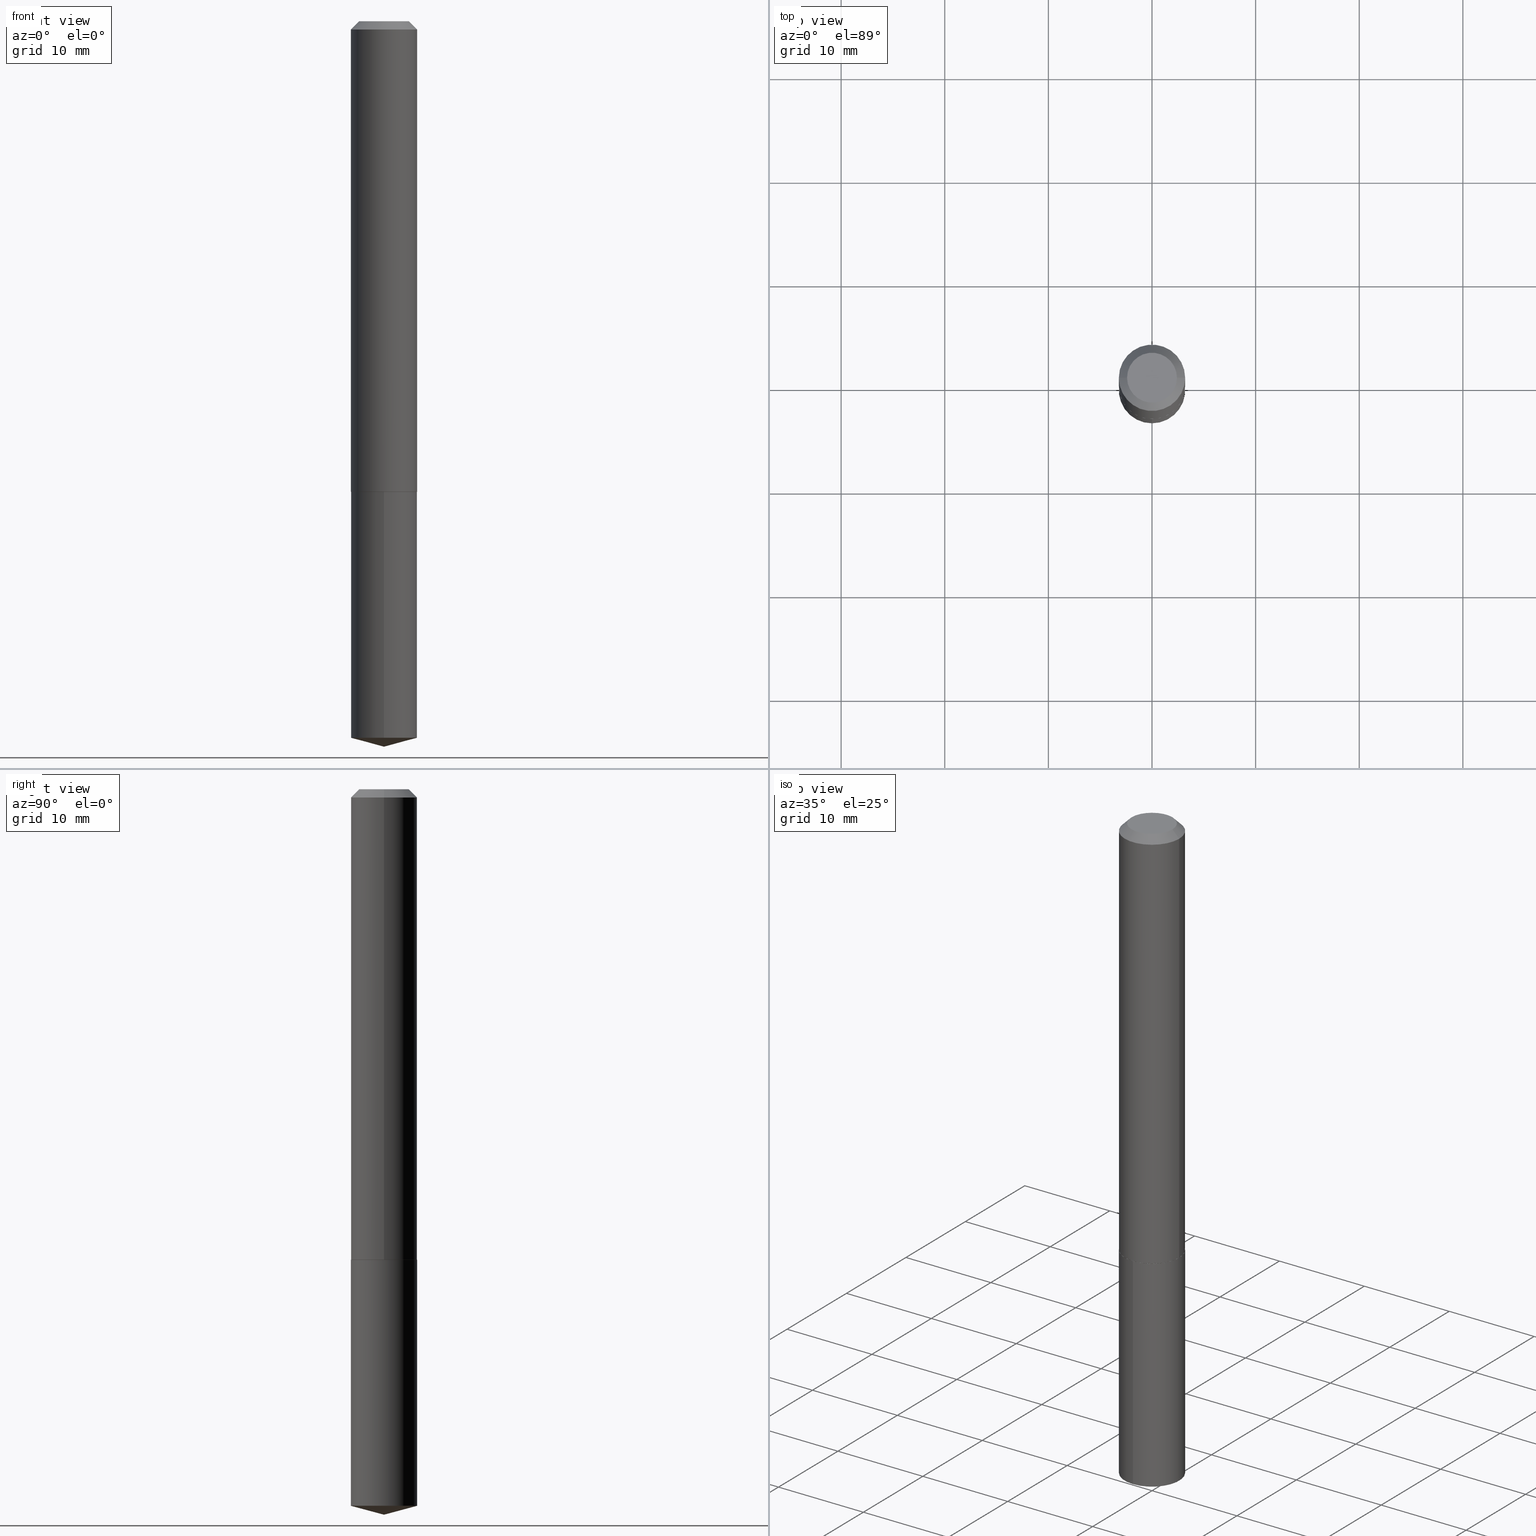
[diagram: canonical four-view strip — front | top / right | iso, engineering-drawing reading convention]
A machine part, canonical four-view strip (front | top / right | iso — engineering-drawing reading convention). The complete STEP part file that produces these views, byte-faithful:
ISO-10303-21;
HEADER;
FILE_DESCRIPTION (( 'STEP AP203' ),
    '1' );
FILE_NAME ('63066.STEP',
    '2024-04-23T09:14:48',
    ( '' ),
    ( '' ),
    'SwSTEP 2.0',
    'SolidWorks 2023',
    '' );
FILE_SCHEMA (( 'CONFIG_CONTROL_DESIGN' ));
ENDSEC;

DATA;
#1 = VECTOR ( 'NONE', #240, 39.37007874015748854 ) ;
#2 = CARTESIAN_POINT ( 'NONE',  ( -0.1260000000000001119, 8.952838470577270294E-16, -6.197858213721186913E-30 ) ) ;
#3 = FACE_OUTER_BOUND ( 'NONE', #21, .T. ) ;
#4 = DATE_AND_TIME ( #53, #298 ) ;
#5 = EDGE_CURVE ( 'NONE', #261, #83, #108, .T. ) ;
#6 = CARTESIAN_POINT ( 'NONE',  ( 8.952838470577930965E-16, 0.1259999999999937559, -1.787400000000000766 ) ) ;
#7 = DIRECTION ( 'NONE',  ( 1.000000000000000000, -6.982962677686266711E-15, 4.876176775795935793E-29 ) ) ;
#8 = AXIS2_PLACEMENT_3D ( 'NONE', #370, #280, #156 ) ;
#9 = CARTESIAN_POINT ( 'NONE',  ( 8.952838470577698251E-16, 0.1259999999999937559, -1.787400000000000766 ) ) ;
#10 = DIRECTION ( 'NONE',  ( 6.863315791527694259E-15, 0.9659258262890694224, 0.2588190451025160765 ) ) ;
#11 = ADVANCED_FACE ( 'NONE', ( #191 ), #286, .F. ) ;
#12 = DIRECTION ( 'NONE',  ( 1.000000000000000000, -6.982962677686268288E-15, 0.000000000000000000 ) ) ;
#13 = VECTOR ( 'NONE', #85, 39.37007874015748143 ) ;
#14 = CC_DESIGN_SECURITY_CLASSIFICATION ( #39, ( #245 ) ) ;
#15 = CARTESIAN_POINT ( 'NONE',  ( 6.739907095617639428E-29, -9.621543871378932650E-15, -2.755900000000000016 ) ) ;
#16 = DIRECTION ( 'NONE',  ( -2.445468806185136597E-29, 3.491481338843145583E-15, 1.000000000000000000 ) ) ;
#17 = CARTESIAN_POINT ( 'NONE',  ( 7.642090019328603538E-31, -1.091087918388490390E-16, -0.03125000000000021511 ) ) ;
#18 = AXIS2_PLACEMENT_3D ( 'NONE', #336, #152, #294 ) ;
#19 = VERTEX_POINT ( 'NONE', #195 ) ;
#20 = COORDINATED_UNIVERSAL_TIME_OFFSET ( 5, 0, .BEHIND. ) ;
#21 = EDGE_LOOP ( 'NONE', ( #163, #117, #57, #118 ) ) ;
#22 = EDGE_CURVE ( 'NONE', #378, #137, #318, .T. ) ;
#23 = COORDINATED_UNIVERSAL_TIME_OFFSET ( 5, 0, .BEHIND. ) ;
#24 = ORIENTED_EDGE ( 'NONE', *, *, #390, .T. ) ;
#25 = CC_DESIGN_APPROVAL ( #233, ( #245 ) ) ;
#26 = APPROVAL_STATUS ( 'not_yet_approved' ) ;
#27 = ORIENTED_EDGE ( 'NONE', *, *, #352, .F. ) ;
#28 = ORIENTED_EDGE ( 'NONE', *, *, #333, .F. ) ;
#29 = DATE_TIME_ROLE ( 'creation_date' ) ;
#30 = ORIENTED_EDGE ( 'NONE', *, *, #182, .T. ) ;
#31 = ORIENTED_EDGE ( 'NONE', *, *, #274, .T. ) ;
#32 = FACE_OUTER_BOUND ( 'NONE', #293, .T. ) ;
#33 = CIRCLE ( 'NONE', #176, 0.1260000000000000009 ) ;
#34 = DIRECTION ( 'NONE',  ( 1.000000000000000000, -6.982962677686265922E-15, 0.000000000000000000 ) ) ;
#35 = DIRECTION ( 'NONE',  ( 6.982962677686265922E-15, 1.000000000000000000, -3.491252901549015115E-15 ) ) ;
#36 = CARTESIAN_POINT ( 'NONE',  ( 6.657053654188704895E-29, -9.504081902360058107E-15, -2.722138401753678494 ) ) ;
#37 = DIRECTION ( 'NONE',  ( -2.445468806185136597E-29, 3.491481338843145583E-15, 1.000000000000000000 ) ) ;
#38 = AXIS2_PLACEMENT_3D ( 'NONE', #92, #264, #7 ) ;
#39 = SECURITY_CLASSIFICATION ( '', '', #321 ) ;
#40 = LINE ( 'NONE', #187, #363 ) ;
#41 = DESIGN_CONTEXT ( 'detailed design', #185, 'design' ) ;
#42 = DIRECTION ( 'NONE',  ( -2.445468806185136597E-29, 3.491481338843145583E-15, 1.000000000000000000 ) ) ;
#43 = CARTESIAN_POINT ( 'NONE',  ( 0.000000000000000000, 0.000000000000000000, 0.000000000000000000 ) ) ;
#44 = CC_DESIGN_PERSON_AND_ORGANIZATION_ASSIGNMENT ( #76, #51, ( #249 ) ) ;
#45 = DIRECTION ( 'NONE',  ( 1.000000000000000000, -6.982962677686266711E-15, 4.876176775795935793E-29 ) ) ;
#46 = FACE_OUTER_BOUND ( 'NONE', #106, .T. ) ;
#47 = PERSON_AND_ORGANIZATION ( #199, #369 ) ;
#48 = VERTEX_POINT ( 'NONE', #198 ) ;
#49 = CIRCLE ( 'NONE', #63, 0.1260000000000000009 ) ;
#50 = CONICAL_SURFACE ( 'NONE', #111, 0.1260000000000000009, 0.7853981633974450594 ) ;
#51 = PERSON_AND_ORGANIZATION_ROLE ( 'design_owner' ) ;
#52 = ORIENTED_EDGE ( 'NONE', *, *, #22, .T. ) ;
#53 = CALENDAR_DATE ( 2024, 23, 4 ) ;
#54 = EDGE_LOOP ( 'NONE', ( #316, #388, #173, #349 ) ) ;
#55 = CC_DESIGN_PERSON_AND_ORGANIZATION_ASSIGNMENT ( #347, #77, ( #127 ) ) ;
#56 =( LENGTH_UNIT ( ) NAMED_UNIT ( * ) SI_UNIT ( $, .METRE. ) );
#57 = ORIENTED_EDGE ( 'NONE', *, *, #242, .F. ) ;
#58 = ORIENTED_EDGE ( 'NONE', *, *, #341, .T. ) ;
#59 = DIRECTION ( 'NONE',  ( -6.982962677686265922E-15, -1.000000000000000000, 4.336266656609941617E-15 ) ) ;
#60 = LINE ( 'NONE', #175, #258 ) ;
#61 = ORIENTED_EDGE ( 'NONE', *, *, #5, .F. ) ;
#62 = EDGE_CURVE ( 'NONE', #226, #322, #272, .T. ) ;
#63 = AXIS2_PLACEMENT_3D ( 'NONE', #36, #65, #180 ) ;
#64 = FACE_OUTER_BOUND ( 'NONE', #148, .T. ) ;
#65 = DIRECTION ( 'NONE',  ( -2.445628323095046715E-29, 3.491252901549015509E-15, 1.000000000000000000 ) ) ;
#66 = DIRECTION ( 'NONE',  ( -2.445628323095046434E-29, 3.491252901549015115E-15, 1.000000000000000000 ) ) ;
#67 = PRODUCT_DEFINITION_SHAPE ( 'NONE', 'NONE',  #127 ) ;
#68 = DIRECTION ( 'NONE',  ( -2.445468806185136597E-29, 3.491481338843145583E-15, 1.000000000000000000 ) ) ;
#69 = CARTESIAN_POINT ( 'NONE',  ( -5.989671091818699506E-48, 8.551662891794013634E-34, 2.449293598294725547E-19 ) ) ;
#70 = UNCERTAINTY_MEASURE_WITH_UNIT (LENGTH_MEASURE( 1.000000000000000082E-05 ), #81, 'distance_accuracy_value', 'NONE');
#71 = FACE_OUTER_BOUND ( 'NONE', #354, .T. ) ;
#72 = ADVANCED_FACE ( 'NONE', ( #32 ), #219, .T. ) ;
#73 = DIRECTION ( 'NONE',  ( -2.445468806185136597E-29, 3.491481338843145583E-15, 1.000000000000000000 ) ) ;
#74 = VECTOR ( 'NONE', #247, 39.37007874015748143 ) ;
#75 = CYLINDRICAL_SURFACE ( 'NONE', #330, 0.1260000000000001119 ) ;
#76 = PERSON_AND_ORGANIZATION ( #199, #369 ) ;
#77 = PERSON_AND_ORGANIZATION_ROLE ( 'creator' ) ;
#78 = EDGE_CURVE ( 'NONE', #144, #48, #49, .T. ) ;
#79 = DIRECTION ( 'NONE',  ( -0.7071067811871027953, 7.493145998872359445E-15, 0.7071067811859920171 ) ) ;
#80 = VECTOR ( 'NONE', #360, 39.37007874015748143 ) ;
#81 =( CONVERSION_BASED_UNIT ( 'INCH', #346 ) LENGTH_UNIT ( ) NAMED_UNIT ( #208 ) );
#82 = DIRECTION ( 'NONE',  ( -1.000000000000000000, 6.982962677686265922E-15, -4.876176775795935793E-29 ) ) ;
#83 = VERTEX_POINT ( 'NONE', #204 ) ;
#84 = APPROVAL_STATUS ( 'not_yet_approved' ) ;
#85 = DIRECTION ( 'NONE',  ( 0.7071067811865452413, -7.319954787623248157E-15, -0.7071067811865497932 ) ) ;
#86 = PERSON_AND_ORGANIZATION_ROLE ( 'design_supplier' ) ;
#87 = ORIENTED_EDGE ( 'NONE', *, *, #295, .T. ) ;
#88 = ORIENTED_EDGE ( 'NONE', *, *, #178, .T. ) ;
#89 = AXIS2_PLACEMENT_3D ( 'NONE', #181, #16, #305 ) ;
#90 = EDGE_LOOP ( 'NONE', ( #169, #88, #115, #385 ) ) ;
#91 = CARTESIAN_POINT ( 'NONE',  ( 4.369808209772221314E-29, -6.238928004378817156E-15, -1.786900000000000377 ) ) ;
#92 = CARTESIAN_POINT ( 'NONE',  ( 0.000000000000000000, 0.000000000000000000, 0.000000000000000000 ) ) ;
#93 = ADVANCED_FACE ( 'NONE', ( #3 ), #251, .T. ) ;
#94 = ORIENTED_EDGE ( 'NONE', *, *, #178, .F. ) ;
#95 = AXIS2_PLACEMENT_3D ( 'NONE', #267, #361, #206 ) ;
#96 = CIRCLE ( 'NONE', #283, 0.1260000000000001952 ) ;
#97 = DIRECTION ( 'NONE',  ( 1.000000000000000000, -6.982962677686268288E-15, 0.000000000000000000 ) ) ;
#98 = CARTESIAN_POINT ( 'NONE',  ( -0.1260000000000000009, -2.278734551051105310E-15, -0.03125000000000021511 ) ) ;
#99 = APPLICATION_CONTEXT ( 'configuration controlled 3d designs of mechanical parts and assemblies' ) ;
#100 = DIRECTION ( 'NONE',  ( -6.982962677686265922E-15, -1.000000000000000000, 4.336266656609941617E-15 ) ) ;
#101 = CARTESIAN_POINT ( 'NONE',  ( 0.1260000000000001119, -8.798532973884703392E-16, 6.143982737502884452E-30 ) ) ;
#102 = AXIS2_PLACEMENT_3D ( 'NONE', #69, #42, #103 ) ;
#103 = DIRECTION ( 'NONE',  ( 1.000000000000000000, -6.982962677686266711E-15, 4.876169288824004424E-29 ) ) ;
#104 = CARTESIAN_POINT ( 'NONE',  ( 4.371030944175314115E-29, -6.240673745048238660E-15, -1.787400000000000100 ) ) ;
#105 = VECTOR ( 'NONE', #339, 39.37007874015748143 ) ;
#106 = EDGE_LOOP ( 'NONE', ( #166, #139, #30, #259 ) ) ;
#107 = APPROVAL_STATUS ( 'not_yet_approved' ) ;
#108 = LINE ( 'NONE', #230, #151 ) ;
#109 = APPROVAL_DATE_TIME ( #291, #122 ) ;
#110 = CARTESIAN_POINT ( 'NONE',  ( -2.994835545909349753E-48, 4.275831445897006817E-34, 1.224646799147362773E-19 ) ) ;
#111 = AXIS2_PLACEMENT_3D ( 'NONE', #311, #161, #252 ) ;
#112 = PERSON_AND_ORGANIZATION ( #199, #369 ) ;
#113 = VERTEX_POINT ( 'NONE', #98 ) ;
#114 = EDGE_CURVE ( 'NONE', #144, #116, #236, .T. ) ;
#115 = ORIENTED_EDGE ( 'NONE', *, *, #289, .F. ) ;
#116 = VERTEX_POINT ( 'NONE', #6 ) ;
#117 = ORIENTED_EDGE ( 'NONE', *, *, #5, .T. ) ;
#118 = ORIENTED_EDGE ( 'NONE', *, *, #62, .F. ) ;
#119 = CIRCLE ( 'NONE', #357, 0.1255000000000000560 ) ;
#120 = CC_DESIGN_APPROVAL ( #326, ( #39 ) ) ;
#121 = DIRECTION ( 'NONE',  ( -2.445468806185136877E-29, 3.491481338843145188E-15, 1.000000000000000000 ) ) ;
#122 = APPROVAL ( #107, 'UNSPECIFIED' ) ;
#123 = LINE ( 'NONE', #2, #192 ) ;
#124 = CARTESIAN_POINT ( 'NONE',  ( 4.369808209772221314E-29, -6.238928004378817156E-15, -1.786900000000000377 ) ) ;
#125 = AXIS2_PLACEMENT_3D ( 'NONE', #17, #133, #128 ) ;
#126 = CYLINDRICAL_SURFACE ( 'NONE', #95, 0.1260000000000000009 ) ;
#127 = PRODUCT_DEFINITION ( 'UNKNOWN', '', #245, #41 ) ;
#128 = DIRECTION ( 'NONE',  ( -1.000000000000000000, 6.982962677686265922E-15, 0.000000000000000000 ) ) ;
#129 = EDGE_CURVE ( 'NONE', #19, #378, #131, .T. ) ;
#130 = CARTESIAN_POINT ( 'NONE',  ( 6.739912095958528590E-29, -9.621543871378932650E-15, -2.755900000000000016 ) ) ;
#131 = CIRCLE ( 'NONE', #265, 0.09474999999999998701 ) ;
#132 = CC_DESIGN_DATE_AND_TIME_ASSIGNMENT ( #138, #384, ( #39 ) ) ;
#133 = DIRECTION ( 'NONE',  ( 2.445468806185136597E-29, -3.491481338843145583E-15, -1.000000000000000000 ) ) ;
#134 = FACE_OUTER_BOUND ( 'NONE', #54, .T. ) ;
#135 = AXIS2_PLACEMENT_3D ( 'NONE', #332, #216, #100 ) ;
#136 = EDGE_CURVE ( 'NONE', #172, #116, #368, .T. ) ;
#137 = VERTEX_POINT ( 'NONE', #212 ) ;
#138 = DATE_AND_TIME ( #255, #160 ) ;
#139 = ORIENTED_EDGE ( 'NONE', *, *, #78, .T. ) ;
#140 = ADVANCED_FACE ( 'NONE', ( #174 ), #143, .T. ) ;
#141 = APPROVAL_ROLE ( '' ) ;
#142 = ORIENTED_EDGE ( 'NONE', *, *, #62, .T. ) ;
#143 = CONICAL_SURFACE ( 'NONE', #18, 146.9311341562558084, 1.308996938995748538 ) ;
#144 = VERTEX_POINT ( 'NONE', #301 ) ;
#145 = APPROVAL_PERSON_ORGANIZATION ( #168, #122, #225 ) ;
#146 = DIRECTION ( 'NONE',  ( 1.000000000000000000, 0.000000000000000000, 0.000000000000000000 ) ) ;
#147 = ORIENTED_EDGE ( 'NONE', *, *, #262, .T. ) ;
#148 = EDGE_LOOP ( 'NONE', ( #382, #24 ) ) ;
#149 = FACE_OUTER_BOUND ( 'NONE', #284, .T. ) ;
#150 = ADVANCED_FACE ( 'NONE', ( #149 ), #238, .T. ) ;
#151 = VECTOR ( 'NONE', #79, 39.37007874015748854 ) ;
#152 = DIRECTION ( 'NONE',  ( -2.445628323095046715E-29, 3.491252901549015509E-15, 1.000000000000000000 ) ) ;
#153 = DIRECTION ( 'NONE',  ( 1.000000000000000000, -6.982962677686268288E-15, 0.000000000000000000 ) ) ;
#154 = FACE_OUTER_BOUND ( 'NONE', #213, .T. ) ;
#155 = DIRECTION ( 'NONE',  ( 2.445628323095046715E-29, -3.491252901549015115E-15, -1.000000000000000000 ) ) ;
#156 = DIRECTION ( 'NONE',  ( -6.982962677686266711E-15, -1.000000000000000000, 3.510303681827621500E-15 ) ) ;
#157 = CARTESIAN_POINT ( 'NONE',  ( 0.09474999999999998701, -8.117818624234574270E-16, 2.449293598346239839E-19 ) ) ;
#158 = CIRCLE ( 'NONE', #135, 0.1260000000000000009 ) ;
#159 = DIRECTION ( 'NONE',  ( -6.982962677686265922E-15, -1.000000000000000000, 4.336266656609941617E-15 ) ) ;
#160 = LOCAL_TIME ( 5, 14, 48.00000000000000000, #20 ) ;
#161 = DIRECTION ( 'NONE',  ( 2.445468806185136597E-29, -3.491481338843145583E-15, -1.000000000000000000 ) ) ;
#162 = CARTESIAN_POINT ( 'NONE',  ( 7.087934856449924707E-29, -2.349912706103619033E-15, -1.787399999999999878 ) ) ;
#163 = ORIENTED_EDGE ( 'NONE', *, *, #333, .T. ) ;
#164 = CIRCLE ( 'NONE', #276, 0.1260000000000001952 ) ;
#165 = DATE_AND_TIME ( #201, #304 ) ;
#166 = ORIENTED_EDGE ( 'NONE', *, *, #114, .F. ) ;
#167 = CARTESIAN_POINT ( 'NONE',  ( 0.1260000000000000009, -9.735315395580621580E-16, -0.03125000000000021511 ) ) ;
#168 = PERSON_AND_ORGANIZATION ( #199, #369 ) ;
#169 = ORIENTED_EDGE ( 'NONE', *, *, #242, .T. ) ;
#170 = CONICAL_SURFACE ( 'NONE', #8, 146.9311341562558084, 1.308996938995748538 ) ;
#171 = APPLICATION_PROTOCOL_DEFINITION ( 'international standard', 'config_control_design', 1994, #185 ) ;
#172 = VERTEX_POINT ( 'NONE', #303 ) ;
#173 = ORIENTED_EDGE ( 'NONE', *, *, #324, .T. ) ;
#174 = FACE_OUTER_BOUND ( 'NONE', #256, .T. ) ;
#175 = CARTESIAN_POINT ( 'NONE',  ( -8.798532973884258671E-16, -0.1260000000000062459, -1.787399999999999656 ) ) ;
#176 = AXIS2_PLACEMENT_3D ( 'NONE', #296, #37, #34 ) ;
#177 = DIRECTION ( 'NONE',  ( -2.445468806185136597E-29, 3.491481338843145583E-15, 1.000000000000000000 ) ) ;
#178 = EDGE_CURVE ( 'NONE', #83, #113, #123, .T. ) ;
#179 = CARTESIAN_POINT ( 'NONE',  ( 4.371030944175314115E-29, -6.240673745048238660E-15, -1.787400000000000100 ) ) ;
#180 = DIRECTION ( 'NONE',  ( -6.982962677686265922E-15, -1.000000000000000000, 4.336266656609941617E-15 ) ) ;
#181 = CARTESIAN_POINT ( 'NONE',  ( 7.642090019328603538E-31, -1.091087918388490390E-16, -0.03125000000000021511 ) ) ;
#182 = EDGE_CURVE ( 'NONE', #48, #172, #60, .T. ) ;
#183 = DIRECTION ( 'NONE',  ( 1.000000000000000000, -6.982962677686272233E-15, 0.000000000000000000 ) ) ;
#184 = DIRECTION ( 'NONE',  ( 1.000000000000000000, -6.982962677686272233E-15, 0.000000000000000000 ) ) ;
#185 = APPLICATION_CONTEXT ( 'configuration controlled 3d designs of mechanical parts and assemblies' ) ;
#186 = AXIS2_PLACEMENT_3D ( 'NONE', #104, #218, #214 ) ;
#187 = CARTESIAN_POINT ( 'NONE',  ( 6.739336854568093115E-29, -9.622360489017988415E-15, -2.755900000000000016 ) ) ;
#188 = CC_DESIGN_APPROVAL ( #122, ( #127 ) ) ;
#189 = FACE_OUTER_BOUND ( 'NONE', #292, .T. ) ;
#190 =( NAMED_UNIT ( * ) PLANE_ANGLE_UNIT ( ) SI_UNIT ( $, .RADIAN. ) );
#191 = FACE_OUTER_BOUND ( 'NONE', #389, .T. ) ;
#192 = VECTOR ( 'NONE', #121, 39.37007874015748143 ) ;
#193 = EDGE_CURVE ( 'NONE', #113, #137, #33, .T. ) ;
#194 = DIRECTION ( 'NONE',  ( 0.000000000000000000, 0.000000000000000000, 1.000000000000000000 ) ) ;
#195 = CARTESIAN_POINT ( 'NONE',  ( -0.09474999999999998701, 7.161901096301971812E-16, 2.449293598246548890E-19 ) ) ;
#196 = ORIENTED_EDGE ( 'NONE', *, *, #78, .F. ) ;
#197 = APPROVAL_ROLE ( '' ) ;
#198 = CARTESIAN_POINT ( 'NONE',  ( -8.798532973884031874E-16, -0.1260000000000095766, -2.722138401753678050 ) ) ;
#199 = PERSON ( 'UNSPECIFIED', 'UNSPECIFIED', 'UNSPECIFIED', ('UNSPECIFIED'), ('UNSPECIFIED'), ('UNSPECIFIED') ) ;
#200 = MANIFOLD_SOLID_BREP ( 'Body-Move/Copy2[2]', #297 ) ;
#201 = CALENDAR_DATE ( 2024, 23, 4 ) ;
#202 = ORIENTED_EDGE ( 'NONE', *, *, #262, .F. ) ;
#203 = AXIS2_PLACEMENT_3D ( 'NONE', #377, #194, #146 ) ;
#204 = CARTESIAN_POINT ( 'NONE',  ( -0.1260000000000001952, -5.343644157321089338E-15, -1.786900000000000377 ) ) ;
#205 = CARTESIAN_POINT ( 'NONE',  ( -5.989671091818699506E-48, 8.551662891794013634E-34, 2.449293598294725547E-19 ) ) ;
#206 = DIRECTION ( 'NONE',  ( -6.982962677686265922E-15, -1.000000000000000000, 4.336266656609941617E-15 ) ) ;
#207 = ADVANCED_FACE ( 'NONE', ( #154 ), #126, .T. ) ;
#208 = DIMENSIONAL_EXPONENTS ( 1.000000000000000000, 0.000000000000000000, 0.000000000000000000, 0.000000000000000000, 0.000000000000000000, 0.000000000000000000, 0.000000000000000000 ) ;
#209 = VECTOR ( 'NONE', #10, 39.37007874015748143 ) ;
#210 = CARTESIAN_POINT ( 'NONE',  ( -0.1255000000000000560, -5.346293384495200539E-15, -1.787399999999999656 ) ) ;
#211 = APPROVAL_DATE_TIME ( #4, #326 ) ;
#212 = CARTESIAN_POINT ( 'NONE',  ( 0.1260000000000000009, -9.889620892273186510E-16, -0.03125000000000021511 ) ) ;
#213 = EDGE_LOOP ( 'NONE', ( #147, #254, #290, #358 ) ) ;
#214 = DIRECTION ( 'NONE',  ( -6.982962677686265922E-15, -1.000000000000000000, 4.336266656609941617E-15 ) ) ;
#215 = DIRECTION ( 'NONE',  ( -2.438088387897960049E-29, 3.491481338843145188E-15, 1.000000000000000000 ) ) ;
#216 = DIRECTION ( 'NONE',  ( -2.445628323095046715E-29, 3.491252901549015509E-15, 1.000000000000000000 ) ) ;
#217 = CC_DESIGN_PERSON_AND_ORGANIZATION_ASSIGNMENT ( #353, #285, ( #39 ) ) ;
#218 = DIRECTION ( 'NONE',  ( -2.445628323095046715E-29, 3.491252901549015509E-15, 1.000000000000000000 ) ) ;
#219 = CONICAL_SURFACE ( 'NONE', #338, 0.1260000000000001952, 0.7853981633982337618 ) ;
#220 = PLANE ( 'NONE',  #239 ) ;
#221 = PRODUCT_RELATED_PRODUCT_CATEGORY ( 'detail', '', ( #249 ) ) ;
#222 =( GEOMETRIC_REPRESENTATION_CONTEXT ( 3 ) GLOBAL_UNCERTAINTY_ASSIGNED_CONTEXT ( ( #70 ) ) GLOBAL_UNIT_ASSIGNED_CONTEXT ( ( #81, #190, #313 ) ) REPRESENTATION_CONTEXT ( 'NONE', 'WORKASPACE' ) );
#223 = APPROVAL_DATE_TIME ( #165, #233 ) ;
#224 = ADVANCED_FACE ( 'NONE', ( #64 ), #299, .F. ) ;
#225 = APPROVAL_ROLE ( '' ) ;
#226 = VERTEX_POINT ( 'NONE', #269 ) ;
#227 = AXIS2_PLACEMENT_3D ( 'NONE', #179, #155, #35 ) ;
#228 = DIRECTION ( 'NONE',  ( 2.438088387897960049E-29, -3.491481338843145188E-15, -1.000000000000000000 ) ) ;
#229 = CALENDAR_DATE ( 2024, 23, 4 ) ;
#230 = CARTESIAN_POINT ( 'NONE',  ( -0.1260000000000001952, -5.343644157321089338E-15, -1.786900000000000377 ) ) ;
#231 = MECHANICAL_CONTEXT ( 'NONE', #99, 'mechanical' ) ;
#232 = ORIENTED_EDGE ( 'NONE', *, *, #295, .F. ) ;
#233 = APPROVAL ( #26, 'UNSPECIFIED' ) ;
#234 = ORIENTED_EDGE ( 'NONE', *, *, #289, .T. ) ;
#235 = ORIENTED_EDGE ( 'NONE', *, *, #324, .F. ) ;
#236 = LINE ( 'NONE', #9, #80 ) ;
#237 = DIRECTION ( 'NONE',  ( 1.000000000000000000, -6.982962677686266711E-15, 4.876169288824004424E-29 ) ) ;
#238 = CYLINDRICAL_SURFACE ( 'NONE', #38, 0.1260000000000001119 ) ;
#239 = AXIS2_PLACEMENT_3D ( 'NONE', #162, #215, #345 ) ;
#240 = DIRECTION ( 'NONE',  ( 0.7071067811871027953, -2.468850131088074121E-15, 0.7071067811859920171 ) ) ;
#241 = CARTESIAN_POINT ( 'NONE',  ( 4.369808209772221314E-29, -6.238928004378817156E-15, -1.786900000000000377 ) ) ;
#242 = EDGE_CURVE ( 'NONE', #322, #83, #164, .T. ) ;
#243 = FACE_OUTER_BOUND ( 'NONE', #90, .T. ) ;
#244 = CLOSED_SHELL ( 'NONE', ( #207, #328, #140, #302, #224 ) ) ;
#245 = PRODUCT_DEFINITION_FORMATION_WITH_SPECIFIED_SOURCE ( 'ANY', '', #249, .NOT_KNOWN. ) ;
#246 = CYLINDRICAL_SURFACE ( 'NONE', #186, 0.1260000000000000009 ) ;
#247 = DIRECTION ( 'NONE',  ( -0.7071067811865452413, 2.468850131082233000E-15, -0.7071067811865497932 ) ) ;
#248 = CARTESIAN_POINT ( 'NONE',  ( 4.371030944175312434E-29, -6.240673745048237082E-15, -1.787399999999999656 ) ) ;
#249 = PRODUCT ( '63066', '63066', '', ( #231 ) ) ;
#250 = ORIENTED_EDGE ( 'NONE', *, *, #307, .F. ) ;
#251 = CONICAL_SURFACE ( 'NONE', #374, 0.1260000000000001952, 0.7853981633982337618 ) ;
#252 = DIRECTION ( 'NONE',  ( -1.000000000000000000, 6.982962677686265922E-15, 0.000000000000000000 ) ) ;
#253 = APPROVAL_PERSON_ORGANIZATION ( #112, #326, #197 ) ;
#254 = ORIENTED_EDGE ( 'NONE', *, *, #114, .T. ) ;
#255 = CALENDAR_DATE ( 2024, 23, 4 ) ;
#256 = EDGE_LOOP ( 'NONE', ( #356, #320, #196 ) ) ;
#257 = PERSON_AND_ORGANIZATION_ROLE ( 'creator' ) ;
#258 = VECTOR ( 'NONE', #66, 39.37007874015748143 ) ;
#259 = ORIENTED_EDGE ( 'NONE', *, *, #390, .F. ) ;
#260 = DATE_AND_TIME ( #229, #310 ) ;
#261 = VERTEX_POINT ( 'NONE', #210 ) ;
#262 = EDGE_CURVE ( 'NONE', #48, #144, #158, .T. ) ;
#263 = ORIENTED_EDGE ( 'NONE', *, *, #129, .T. ) ;
#264 = DIRECTION ( 'NONE',  ( -2.445468806185136597E-29, 3.491481338843145583E-15, 1.000000000000000000 ) ) ;
#265 = AXIS2_PLACEMENT_3D ( 'NONE', #205, #366, #237 ) ;
#266 = LOCAL_TIME ( 5, 14, 48.00000000000000000, #282 ) ;
#267 = CARTESIAN_POINT ( 'NONE',  ( 4.371030944175314115E-29, -6.240673745048238660E-15, -1.787400000000000100 ) ) ;
#268 = ADVANCED_FACE ( 'NONE', ( #243 ), #75, .T. ) ;
#269 = CARTESIAN_POINT ( 'NONE',  ( 0.1255000000000000560, -7.117035561097863428E-15, -1.787399999999999656 ) ) ;
#270 = DIRECTION ( 'NONE',  ( -2.445468806185136597E-29, 3.491481338843145583E-15, 1.000000000000000000 ) ) ;
#271 = AXIS2_PLACEMENT_3D ( 'NONE', #337, #273, #184 ) ;
#272 = LINE ( 'NONE', #329, #1 ) ;
#273 = DIRECTION ( 'NONE',  ( -2.445468806185136597E-29, 3.491481338843145583E-15, 1.000000000000000000 ) ) ;
#274 = EDGE_CURVE ( 'NONE', #359, #144, #306, .T. ) ;
#275 = CARTESIAN_POINT ( 'NONE',  ( 4.369808209772221314E-29, -6.238928004378817156E-15, -1.786900000000000377 ) ) ;
#276 = AXIS2_PLACEMENT_3D ( 'NONE', #124, #362, #97 ) ;
#277 = ADVANCED_FACE ( 'NONE', ( #312 ), #309, .T. ) ;
#278 = CARTESIAN_POINT ( 'NONE',  ( 0.1260000000000001952, -7.118781301767288876E-15, -1.786900000000000377 ) ) ;
#279 = CARTESIAN_POINT ( 'NONE',  ( 4.371030944175314115E-29, -6.240673745048238660E-15, -1.787400000000000100 ) ) ;
#280 = DIRECTION ( 'NONE',  ( -2.445628323095046715E-29, 3.491252901549015509E-15, 1.000000000000000000 ) ) ;
#281 = CIRCLE ( 'NONE', #89, 0.1260000000000000009 ) ;
#282 = COORDINATED_UNIVERSAL_TIME_OFFSET ( 5, 0, .BEHIND. ) ;
#283 = AXIS2_PLACEMENT_3D ( 'NONE', #275, #371, #12 ) ;
#284 = EDGE_LOOP ( 'NONE', ( #94, #381, #58, #351 ) ) ;
#285 = PERSON_AND_ORGANIZATION_ROLE ( 'classification_officer' ) ;
#286 = PLANE ( 'NONE',  #350 ) ;
#287 = CC_DESIGN_PERSON_AND_ORGANIZATION_ASSIGNMENT ( #47, #257, ( #245 ) ) ;
#288 = ORIENTED_EDGE ( 'NONE', *, *, #379, .F. ) ;
#289 = EDGE_CURVE ( 'NONE', #137, #113, #281, .T. ) ;
#290 = ORIENTED_EDGE ( 'NONE', *, *, #136, .F. ) ;
#291 = DATE_AND_TIME ( #314, #266 ) ;
#292 = EDGE_LOOP ( 'NONE', ( #250, #31, #202 ) ) ;
#293 = EDGE_LOOP ( 'NONE', ( #61, #87, #142, #288 ) ) ;
#294 = DIRECTION ( 'NONE',  ( -6.982962677686266711E-15, -1.000000000000000000, 3.510303681827621500E-15 ) ) ;
#295 = EDGE_CURVE ( 'NONE', #261, #226, #119, .T. ) ;
#296 = CARTESIAN_POINT ( 'NONE',  ( 7.642090019328603538E-31, -1.091087918388490390E-16, -0.03125000000000021511 ) ) ;
#297 = CLOSED_SHELL ( 'NONE', ( #277, #268, #93, #319, #72, #150, #348, #11 ) ) ;
#298 = LOCAL_TIME ( 5, 14, 48.00000000000000000, #380 ) ;
#299 = PLANE ( 'NONE',  #227 ) ;
#300 = CC_DESIGN_PERSON_AND_ORGANIZATION_ASSIGNMENT ( #387, #86, ( #245 ) ) ;
#301 = CARTESIAN_POINT ( 'NONE',  ( 8.952838470577932937E-16, 0.1259999999999905362, -2.722138401753679382 ) ) ;
#302 = ADVANCED_FACE ( 'NONE', ( #46 ), #246, .T. ) ;
#303 = CARTESIAN_POINT ( 'NONE',  ( -8.798532973884258671E-16, -0.1260000000000062459, -1.787399999999999656 ) ) ;
#304 = LOCAL_TIME ( 5, 14, 48.00000000000000000, #376 ) ;
#305 = DIRECTION ( 'NONE',  ( 1.000000000000000000, -6.982962677686265922E-15, 0.000000000000000000 ) ) ;
#306 = LINE ( 'NONE', #130, #209 ) ;
#307 = EDGE_CURVE ( 'NONE', #359, #48, #40, .T. ) ;
#308 = LINE ( 'NONE', #101, #105 ) ;
#309 = CONICAL_SURFACE ( 'NONE', #125, 0.1260000000000000009, 0.7853981633974450594 ) ;
#310 = LOCAL_TIME ( 5, 14, 48.00000000000000000, #23 ) ;
#311 = CARTESIAN_POINT ( 'NONE',  ( 7.642090019328603538E-31, -1.091087918388490390E-16, -0.03125000000000021511 ) ) ;
#312 = FACE_OUTER_BOUND ( 'NONE', #386, .T. ) ;
#313 =( NAMED_UNIT ( * ) SI_UNIT ( $, .STERADIAN. ) SOLID_ANGLE_UNIT ( ) );
#314 = CALENDAR_DATE ( 2024, 23, 4 ) ;
#315 = CIRCLE ( 'NONE', #375, 0.1260000000000000009 ) ;
#316 = ORIENTED_EDGE ( 'NONE', *, *, #22, .F. ) ;
#317 = APPLICATION_PROTOCOL_DEFINITION ( 'international standard', 'config_control_design', 1994, #99 ) ;
#318 = LINE ( 'NONE', #167, #13 ) ;
#319 = ADVANCED_FACE ( 'NONE', ( #71 ), #220, .F. ) ;
#320 = ORIENTED_EDGE ( 'NONE', *, *, #307, .T. ) ;
#321 = SECURITY_CLASSIFICATION_LEVEL ( 'unclassified' ) ;
#322 = VERTEX_POINT ( 'NONE', #278 ) ;
#323 = ORIENTED_EDGE ( 'NONE', *, *, #352, .T. ) ;
#324 = EDGE_CURVE ( 'NONE', #19, #113, #367, .T. ) ;
#325 = DIRECTION ( 'NONE',  ( -2.445628323095046715E-29, 3.491252901549015509E-15, 1.000000000000000000 ) ) ;
#326 = APPROVAL ( #84, 'UNSPECIFIED' ) ;
#327 = CARTESIAN_POINT ( 'NONE',  ( 4.371030944175314115E-29, -6.240673745048238660E-15, -1.787400000000000100 ) ) ;
#328 = ADVANCED_FACE ( 'NONE', ( #189 ), #170, .T. ) ;
#329 = CARTESIAN_POINT ( 'NONE',  ( 0.1260000000000001952, -7.118781301767288876E-15, -1.786900000000000377 ) ) ;
#330 = AXIS2_PLACEMENT_3D ( 'NONE', #43, #68, #45 ) ;
#331 = CIRCLE ( 'NONE', #102, 0.09474999999999998701 ) ;
#332 = CARTESIAN_POINT ( 'NONE',  ( 6.657053654188704895E-29, -9.504081902360058107E-15, -2.722138401753678494 ) ) ;
#333 = EDGE_CURVE ( 'NONE', #226, #261, #343, .T. ) ;
#334 = SHAPE_DEFINITION_REPRESENTATION ( #67, #344 ) ;
#335 = MANIFOLD_SOLID_BREP ( 'Body-Move/Copy2[1]', #244 ) ;
#336 = CARTESIAN_POINT ( 'NONE',  ( -8.954495767431843886E-28, 1.278289494555895413E-13, 36.61417874015747742 ) ) ;
#337 = CARTESIAN_POINT ( 'NONE',  ( 4.371030944175312434E-29, -6.240673745048237082E-15, -1.787399999999999656 ) ) ;
#338 = AXIS2_PLACEMENT_3D ( 'NONE', #241, #270, #153 ) ;
#339 = DIRECTION ( 'NONE',  ( -2.445468806185136877E-29, 3.491481338843145188E-15, 1.000000000000000000 ) ) ;
#340 = DIRECTION ( 'NONE',  ( -2.445628323095046715E-29, 3.491252901549015509E-15, 1.000000000000000000 ) ) ;
#341 = EDGE_CURVE ( 'NONE', #322, #137, #308, .T. ) ;
#342 = CARTESIAN_POINT ( 'NONE',  ( -0.1260000000000000009, 7.707445055496204497E-16, -0.03125000000000021511 ) ) ;
#343 = CIRCLE ( 'NONE', #271, 0.1255000000000000560 ) ;
#344 = ADVANCED_BREP_SHAPE_REPRESENTATION ( '63066', ( #335, #200, #203 ), #222 ) ;
#345 = DIRECTION ( 'NONE',  ( 1.000000000000000000, -6.982962677686265922E-15, 4.876176775795935793E-29 ) ) ;
#346 = LENGTH_MEASURE_WITH_UNIT ( LENGTH_MEASURE( 0.02539999999999999897 ), #56 );
#347 = PERSON_AND_ORGANIZATION ( #199, #369 ) ;
#348 = ADVANCED_FACE ( 'NONE', ( #134 ), #50, .T. ) ;
#349 = ORIENTED_EDGE ( 'NONE', *, *, #193, .T. ) ;
#350 = AXIS2_PLACEMENT_3D ( 'NONE', #110, #228, #82 ) ;
#351 = ORIENTED_EDGE ( 'NONE', *, *, #193, .F. ) ;
#352 = EDGE_CURVE ( 'NONE', #378, #19, #331, .T. ) ;
#353 = PERSON_AND_ORGANIZATION ( #199, #369 ) ;
#354 = EDGE_LOOP ( 'NONE', ( #28, #232 ) ) ;
#355 = PERSON_AND_ORGANIZATION ( #199, #369 ) ;
#356 = ORIENTED_EDGE ( 'NONE', *, *, #274, .F. ) ;
#357 = AXIS2_PLACEMENT_3D ( 'NONE', #248, #73, #183 ) ;
#358 = ORIENTED_EDGE ( 'NONE', *, *, #182, .F. ) ;
#359 = VERTEX_POINT ( 'NONE', #15 ) ;
#360 = DIRECTION ( 'NONE',  ( -2.445628323095046434E-29, 3.491252901549015115E-15, 1.000000000000000000 ) ) ;
#361 = DIRECTION ( 'NONE',  ( -2.445628323095046715E-29, 3.491252901549015509E-15, 1.000000000000000000 ) ) ;
#362 = DIRECTION ( 'NONE',  ( -2.445468806185136597E-29, 3.491481338843145583E-15, 1.000000000000000000 ) ) ;
#363 = VECTOR ( 'NONE', #372, 39.37007874015748854 ) ;
#364 = APPROVAL_PERSON_ORGANIZATION ( #355, #233, #141 ) ;
#365 = DIRECTION ( 'NONE',  ( 1.000000000000000000, -6.982962677686268288E-15, 0.000000000000000000 ) ) ;
#366 = DIRECTION ( 'NONE',  ( -2.445468806185136597E-29, 3.491481338843145583E-15, 1.000000000000000000 ) ) ;
#367 = LINE ( 'NONE', #342, #74 ) ;
#368 = CIRCLE ( 'NONE', #383, 0.1260000000000000009 ) ;
#369 = ORGANIZATION ( 'UNSPECIFIED', 'UNSPECIFIED', '' ) ;
#370 = CARTESIAN_POINT ( 'NONE',  ( -8.954495767431843886E-28, 1.278289494555895413E-13, 36.61417874015747742 ) ) ;
#371 = DIRECTION ( 'NONE',  ( -2.445468806185136597E-29, 3.491481338843145583E-15, 1.000000000000000000 ) ) ;
#372 = DIRECTION ( 'NONE',  ( -6.745023994389839133E-15, -0.9659258262890676461, 0.2588190451025227934 ) ) ;
#373 = CC_DESIGN_DATE_AND_TIME_ASSIGNMENT ( #260, #29, ( #127 ) ) ;
#374 = AXIS2_PLACEMENT_3D ( 'NONE', #91, #177, #365 ) ;
#375 = AXIS2_PLACEMENT_3D ( 'NONE', #279, #340, #159 ) ;
#376 = COORDINATED_UNIVERSAL_TIME_OFFSET ( 5, 0, .BEHIND. ) ;
#377 = CARTESIAN_POINT ( 'NONE',  ( 0.000000000000000000, 0.000000000000000000, 0.000000000000000000 ) ) ;
#378 = VERTEX_POINT ( 'NONE', #157 ) ;
#379 = EDGE_CURVE ( 'NONE', #83, #322, #96, .T. ) ;
#380 = COORDINATED_UNIVERSAL_TIME_OFFSET ( 5, 0, .BEHIND. ) ;
#381 = ORIENTED_EDGE ( 'NONE', *, *, #379, .T. ) ;
#382 = ORIENTED_EDGE ( 'NONE', *, *, #136, .T. ) ;
#383 = AXIS2_PLACEMENT_3D ( 'NONE', #327, #325, #59 ) ;
#384 = DATE_TIME_ROLE ( 'classification_date' ) ;
#385 = ORIENTED_EDGE ( 'NONE', *, *, #341, .F. ) ;
#386 = EDGE_LOOP ( 'NONE', ( #27, #52, #234, #235 ) ) ;
#387 = PERSON_AND_ORGANIZATION ( #199, #369 ) ;
#388 = ORIENTED_EDGE ( 'NONE', *, *, #129, .F. ) ;
#389 = EDGE_LOOP ( 'NONE', ( #263, #323 ) ) ;
#390 = EDGE_CURVE ( 'NONE', #116, #172, #315, .T. ) ;
ENDSEC;
END-ISO-10303-21;
